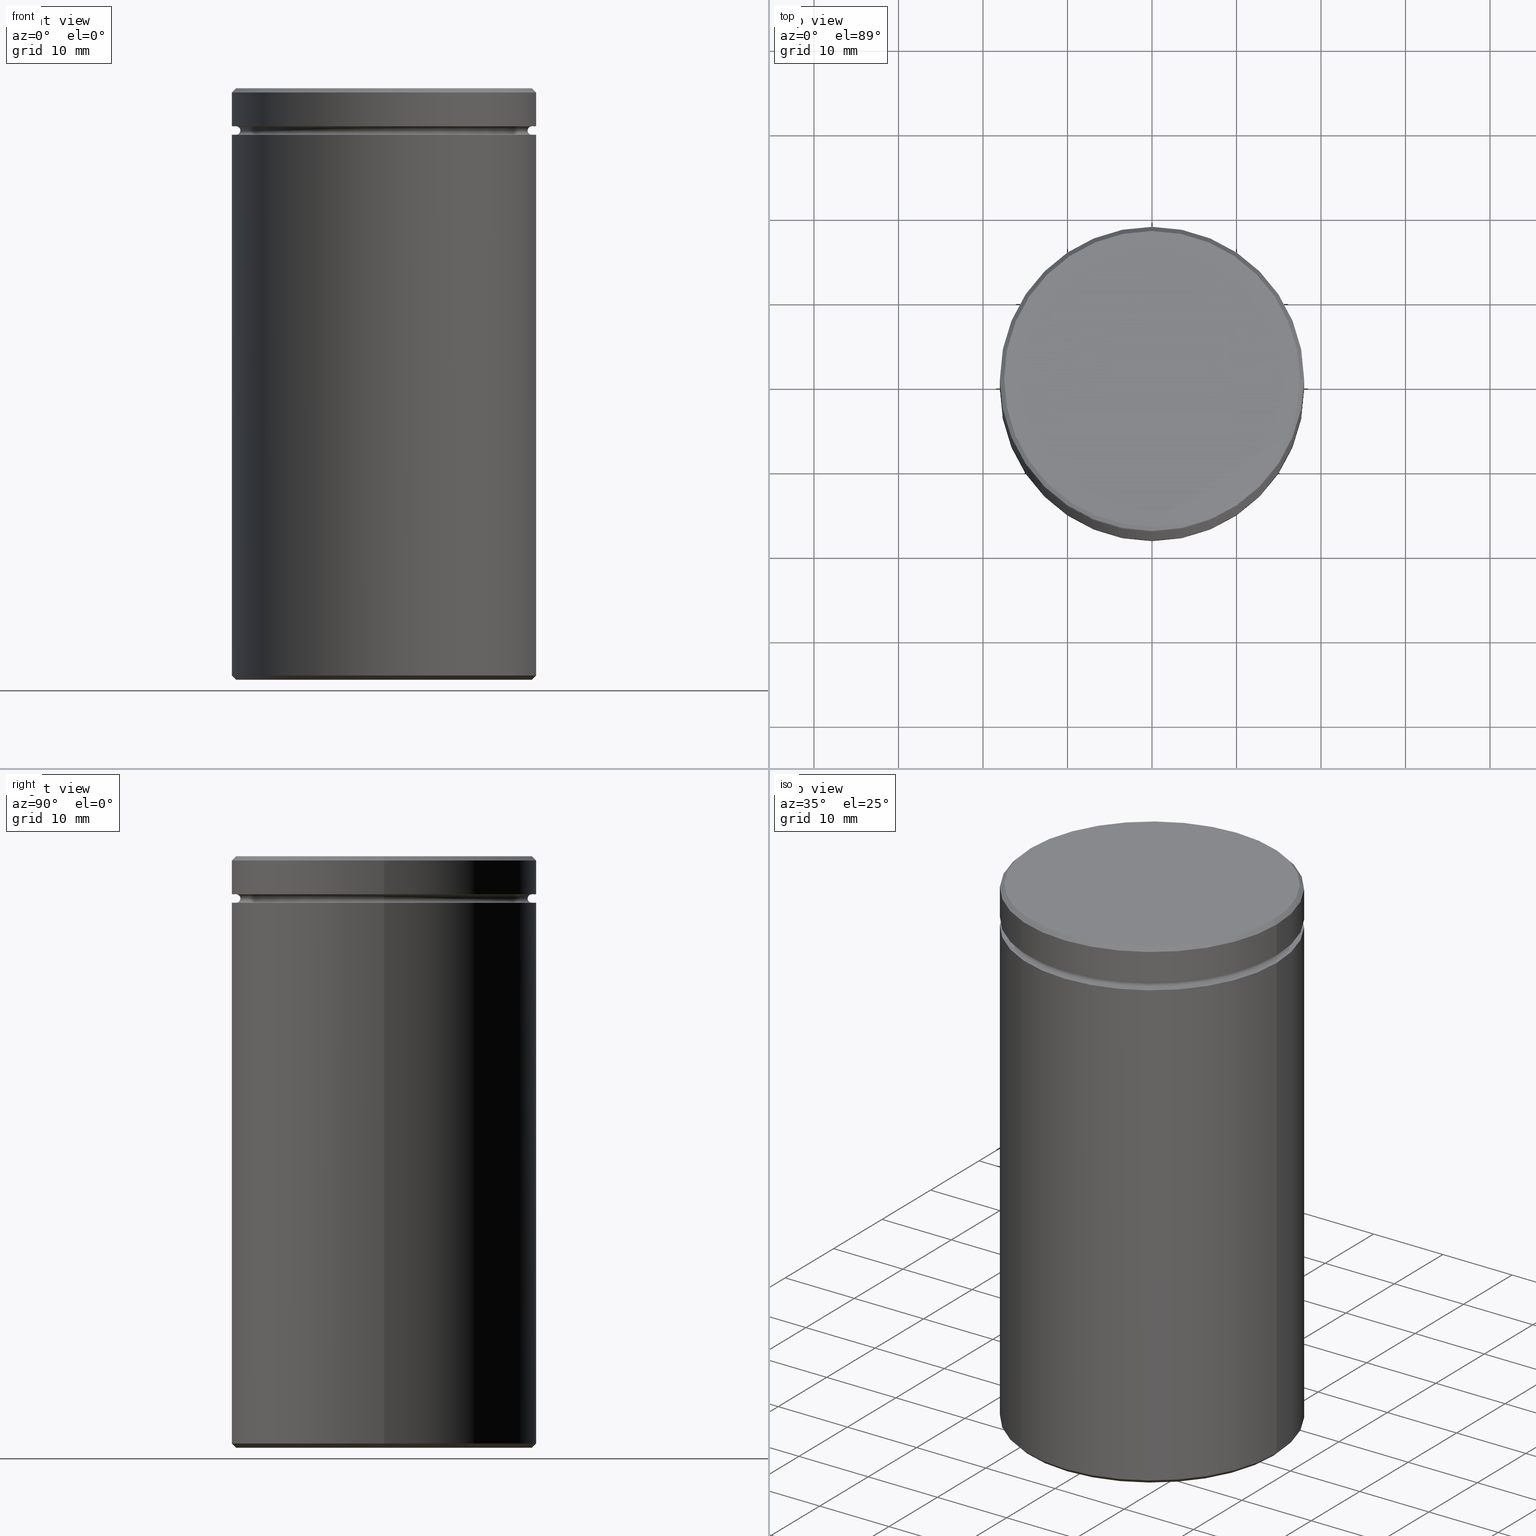
[diagram: canonical four-view strip — front | top / right | iso, engineering-drawing reading convention]
A machine part, canonical four-view strip (front | top / right | iso — engineering-drawing reading convention). The complete STEP part file that produces these views, byte-faithful:
ISO-10303-21;
HEADER;
FILE_DESCRIPTION (( 'STEP AP203' ),
    '1' );
FILE_NAME ('dcb7.STEP',
    '2024-01-02T17:56:58',
    ( '' ),
    ( '' ),
    'SwSTEP 2.0',
    'SolidWorks 2019',
    '' );
FILE_SCHEMA (( 'CONFIG_CONTROL_DESIGN' ));
ENDSEC;

DATA;
#1 = EDGE_LOOP ( 'NONE', ( #355, #127, #502, #558 ) ) ;
#2 = CC_DESIGN_PERSON_AND_ORGANIZATION_ASSIGNMENT ( #526, #442, ( #46 ) ) ;
#3 = DIRECTION ( 'NONE',  ( -0.7071067811865425767, 0.000000000000000000, -0.7071067811865525687 ) ) ;
#4 = CARTESIAN_POINT ( 'NONE',  ( 17.49999999999999645, 2.143131898507867854E-15, -5.000000000000000888 ) ) ;
#5 = DIRECTION ( 'NONE',  ( 1.000000000000000000, 0.000000000000000000, 0.000000000000000000 ) ) ;
#6 = LINE ( 'NONE', #418, #44 ) ;
#7 = DIRECTION ( 'NONE',  ( 0.000000000000000000, 0.000000000000000000, -1.000000000000000000 ) ) ;
#8 = DIRECTION ( 'NONE',  ( -1.000000000000000000, 0.000000000000000000, -0.000000000000000000 ) ) ;
#9 = ADVANCED_FACE ( 'NONE', ( #421 ), #186, .T. ) ;
#10 = ORIENTED_EDGE ( 'NONE', *, *, #205, .T. ) ;
#11 = LINE ( 'NONE', #157, #323 ) ;
#12 = CIRCLE ( 'NONE', #350, 12.50000000000000000 ) ;
#13 = ORIENTED_EDGE ( 'NONE', *, *, #81, .T. ) ;
#14 = AXIS2_PLACEMENT_3D ( 'NONE', #499, #379, #108 ) ;
#15 = CYLINDRICAL_SURFACE ( 'NONE', #164, 18.00000000000000000 ) ;
#16 = DIRECTION ( 'NONE',  ( -1.000000000000000000, 0.000000000000000000, 0.000000000000000000 ) ) ;
#17 = ORIENTED_EDGE ( 'NONE', *, *, #20, .T. ) ;
#18 = ORIENTED_EDGE ( 'NONE', *, *, #112, .T. ) ;
#19 = FACE_OUTER_BOUND ( 'NONE', #423, .T. ) ;
#20 = EDGE_CURVE ( 'NONE', #378, #233, #408, .T. ) ;
#21 = DIRECTION ( 'NONE',  ( 0.000000000000000000, 0.000000000000000000, -1.000000000000000000 ) ) ;
#22 = ORIENTED_EDGE ( 'NONE', *, *, #480, .F. ) ;
#23 = CIRCLE ( 'NONE', #562, 18.00000000000000000 ) ;
#24 = CIRCLE ( 'NONE', #352, 0.5000000000000004441 ) ;
#25 = ORIENTED_EDGE ( 'NONE', *, *, #440, .T. ) ;
#26 = EDGE_CURVE ( 'NONE', #114, #208, #284, .T. ) ;
#27 = FACE_OUTER_BOUND ( 'NONE', #385, .T. ) ;
#28 = EDGE_LOOP ( 'NONE', ( #13, #560 ) ) ;
#29 = ORIENTED_EDGE ( 'NONE', *, *, #261, .F. ) ;
#30 = AXIS2_PLACEMENT_3D ( 'NONE', #409, #420, #153 ) ;
#31 = DATE_TIME_ROLE ( 'creation_date' ) ;
#32 = EDGE_CURVE ( 'NONE', #486, #551, #232, .T. ) ;
#33 = ORIENTED_EDGE ( 'NONE', *, *, #93, .F. ) ;
#34 = CC_DESIGN_PERSON_AND_ORGANIZATION_ASSIGNMENT ( #517, #216, ( #46 ) ) ;
#35 = DIRECTION ( 'NONE',  ( 0.7071067811865549002, 0.000000000000000000, 0.7071067811865401342 ) ) ;
#36 = PERSON_AND_ORGANIZATION ( #264, #458 ) ;
#37 = CARTESIAN_POINT ( 'NONE',  ( 0.000000000000000000, 0.000000000000000000, 0.000000000000000000 ) ) ;
#38 = CIRCLE ( 'NONE', #94, 18.00000000000000000 ) ;
#39 = PERSON_AND_ORGANIZATION ( #264, #458 ) ;
#40 = ORIENTED_EDGE ( 'NONE', *, *, #107, .F. ) ;
#41 =( NAMED_UNIT ( * ) PLANE_ANGLE_UNIT ( ) SI_UNIT ( $, .RADIAN. ) );
#42 = ORIENTED_EDGE ( 'NONE', *, *, #274, .F. ) ;
#43 = DIRECTION ( 'NONE',  ( -0.000000000000000000, -0.000000000000000000, 1.000000000000000000 ) ) ;
#44 = VECTOR ( 'NONE', #362, 1000.000000000000000 ) ;
#45 = FACE_OUTER_BOUND ( 'NONE', #1, .T. ) ;
#46 = PRODUCT_DEFINITION_FORMATION_WITH_SPECIFIED_SOURCE ( 'LIBOVOLN�', '', #426, .NOT_KNOWN. ) ;
#47 = DIRECTION ( 'NONE',  ( 1.224646799147353207E-16, 1.000000000000000000, 0.000000000000000000 ) ) ;
#48 = DIRECTION ( 'NONE',  ( -0.000000000000000000, -0.000000000000000000, 1.000000000000000000 ) ) ;
#49 = CARTESIAN_POINT ( 'NONE',  ( 0.000000000000000000, 0.000000000000000000, -69.50000000000001421 ) ) ;
#50 = ADVANCED_FACE ( 'NONE', ( #111 ), #341, .F. ) ;
#51 = DIRECTION ( 'NONE',  ( -0.000000000000000000, -0.000000000000000000, 1.000000000000000000 ) ) ;
#52 = CARTESIAN_POINT ( 'NONE',  ( 0.000000000000000000, 0.000000000000000000, -4.500000000000000888 ) ) ;
#53 = DIRECTION ( 'NONE',  ( 1.000000000000000000, 0.000000000000000000, 0.000000000000000000 ) ) ;
#54 = DIRECTION ( 'NONE',  ( -1.000000000000000000, 1.224646799147349509E-16, 0.000000000000000000 ) ) ;
#55 = AXIS2_PLACEMENT_3D ( 'NONE', #49, #498, #99 ) ;
#56 = ORIENTED_EDGE ( 'NONE', *, *, #353, .T. ) ;
#57 = CARTESIAN_POINT ( 'NONE',  ( 0.000000000000000000, 0.000000000000000000, -69.50000000000001421 ) ) ;
#58 = ADVANCED_FACE ( 'NONE', ( #19 ), #332, .F. ) ;
#59 = DIRECTION ( 'NONE',  ( -0.000000000000000000, -0.000000000000000000, 1.000000000000000000 ) ) ;
#60 = FACE_OUTER_BOUND ( 'NONE', #513, .T. ) ;
#61 = CARTESIAN_POINT ( 'NONE',  ( 0.000000000000000000, 0.000000000000000000, -0.5000000000000177636 ) ) ;
#62 = DIRECTION ( 'NONE',  ( -1.000000000000000000, 0.000000000000000000, 0.000000000000000000 ) ) ;
#63 = ORIENTED_EDGE ( 'NONE', *, *, #261, .T. ) ;
#64 = DIRECTION ( 'NONE',  ( -1.000000000000000000, 0.000000000000000000, 0.000000000000000000 ) ) ;
#65 = LINE ( 'NONE', #259, #238 ) ;
#66 = EDGE_LOOP ( 'NONE', ( #29, #359, #381, #565 ) ) ;
#67 = CARTESIAN_POINT ( 'NONE',  ( -17.49999999999998934, 0.000000000000000000, 0.000000000000000000 ) ) ;
#68 = AXIS2_PLACEMENT_3D ( 'NONE', #37, #223, #135 ) ;
#69 = APPROVAL_STATUS ( 'not_yet_approved' ) ;
#70 = ADVANCED_FACE ( 'NONE', ( #60, #295 ), #568, .T. ) ;
#71 = CARTESIAN_POINT ( 'NONE',  ( 12.50000000000000000, 1.530808498934191521E-15, -24.00000000000000711 ) ) ;
#72 = AXIS2_PLACEMENT_3D ( 'NONE', #501, #257, #431 ) ;
#73 = ADVANCED_FACE ( 'NONE', ( #225, #402 ), #137, .T. ) ;
#74 = ORIENTED_EDGE ( 'NONE', *, *, #566, .F. ) ;
#75 = COORDINATED_UNIVERSAL_TIME_OFFSET ( 1, 0, .AHEAD. ) ;
#76 = DIRECTION ( 'NONE',  ( -0.000000000000000000, -0.000000000000000000, 1.000000000000000000 ) ) ;
#77 = EDGE_CURVE ( 'NONE', #278, #130, #496, .T. ) ;
#78 = DATE_AND_TIME ( #356, #203 ) ;
#79 = CARTESIAN_POINT ( 'NONE',  ( 18.00000000000000000, 0.000000000000000000, 0.000000000000000000 ) ) ;
#80 = FACE_OUTER_BOUND ( 'NONE', #380, .T. ) ;
#81 = EDGE_CURVE ( 'NONE', #161, #326, #398, .T. ) ;
#82 = DIRECTION ( 'NONE',  ( 0.000000000000000000, 0.000000000000000000, 1.000000000000000000 ) ) ;
#83 = CONICAL_SURFACE ( 'NONE', #55, 18.00000000000000000, 0.7853981633974587151 ) ;
#84 = DIRECTION ( 'NONE',  ( 0.000000000000000000, 0.000000000000000000, -1.000000000000000000 ) ) ;
#85 = AXIS2_PLACEMENT_3D ( 'NONE', #516, #377, #549 ) ;
#86 = ORIENTED_EDGE ( 'NONE', *, *, #205, .F. ) ;
#87 = DATE_AND_TIME ( #128, #194 ) ;
#88 = ORIENTED_EDGE ( 'NONE', *, *, #151, .T. ) ;
#89 = CARTESIAN_POINT ( 'NONE',  ( 0.000000000000000000, 0.000000000000000000, -4.999999999999999112 ) ) ;
#90 = VECTOR ( 'NONE', #3, 999.9999999999998863 ) ;
#91 = CARTESIAN_POINT ( 'NONE',  ( 0.000000000000000000, 0.000000000000000000, -4.500000000000000888 ) ) ;
#92 = LOCAL_TIME ( 18, 56, 58.00000000000000000, #477 ) ;
#93 = EDGE_CURVE ( 'NONE', #541, #326, #24, .T. ) ;
#94 = AXIS2_PLACEMENT_3D ( 'NONE', #61, #427, #559 ) ;
#95 = VECTOR ( 'NONE', #35, 1000.000000000000000 ) ;
#96 = CARTESIAN_POINT ( 'NONE',  ( -17.49999999999999645, 2.143131898507867854E-15, -5.500000000000000000 ) ) ;
#97 = DIRECTION ( 'NONE',  ( -1.000000000000000000, 0.000000000000000000, -0.000000000000000000 ) ) ;
#98 = CYLINDRICAL_SURFACE ( 'NONE', #415, 12.50000000000000000 ) ;
#99 = DIRECTION ( 'NONE',  ( 1.000000000000000000, 0.000000000000000000, 0.000000000000000000 ) ) ;
#100 = DIRECTION ( 'NONE',  ( 0.000000000000000000, -0.000000000000000000, 1.000000000000000000 ) ) ;
#101 = ORIENTED_EDGE ( 'NONE', *, *, #248, .F. ) ;
#102 = CONICAL_SURFACE ( 'NONE', #68, 17.49999999999998934, 0.7853981633974412846 ) ;
#103 = DIRECTION ( 'NONE',  ( 0.000000000000000000, 0.000000000000000000, -1.000000000000000000 ) ) ;
#104 = CARTESIAN_POINT ( 'NONE',  ( 0.000000000000000000, 0.000000000000000000, 0.000000000000000000 ) ) ;
#105 = ORIENTED_EDGE ( 'NONE', *, *, #274, .T. ) ;
#106 = DIRECTION ( 'NONE',  ( 0.7071067811865425767, 8.659560562354873694E-17, -0.7071067811865525687 ) ) ;
#107 = EDGE_CURVE ( 'NONE', #541, #191, #556, .T. ) ;
#108 = DIRECTION ( 'NONE',  ( -1.000000000000000000, 0.000000000000000000, 0.000000000000000000 ) ) ;
#109 = VERTEX_POINT ( 'NONE', #286 ) ;
#110 = CARTESIAN_POINT ( 'NONE',  ( 0.000000000000000000, 0.000000000000000000, -5.000000000000000888 ) ) ;
#111 = FACE_OUTER_BOUND ( 'NONE', #335, .T. ) ;
#112 = EDGE_CURVE ( 'NONE', #551, #384, #11, .T. ) ;
#113 = CC_DESIGN_DATE_AND_TIME_ASSIGNMENT ( #132, #224, ( #521 ) ) ;
#114 = VERTEX_POINT ( 'NONE', #293 ) ;
#115 = CARTESIAN_POINT ( 'NONE',  ( -18.00000000000000000, 2.204364238465235428E-15, -0.5000000000000177636 ) ) ;
#116 = ORIENTED_EDGE ( 'NONE', *, *, #77, .T. ) ;
#117 = ADVANCED_FACE ( 'NONE', ( #247 ), #537, .T. ) ;
#118 = DIRECTION ( 'NONE',  ( -1.000000000000000000, 0.000000000000000000, 0.000000000000000000 ) ) ;
#119 = CARTESIAN_POINT ( 'NONE',  ( 18.00000000000000000, 0.000000000000000000, -69.50000000000001421 ) ) ;
#120 = AXIS2_PLACEMENT_3D ( 'NONE', #535, #497, #97 ) ;
#121 = APPLICATION_PROTOCOL_DEFINITION ( 'international standard', 'config_control_design', 1994, #152 ) ;
#122 = CYLINDRICAL_SURFACE ( 'NONE', #211, 18.00000000000000000 ) ;
#123 = VERTEX_POINT ( 'NONE', #371 ) ;
#124 = PERSON_AND_ORGANIZATION_ROLE ( 'creator' ) ;
#125 = DIRECTION ( 'NONE',  ( -0.000000000000000000, -0.000000000000000000, -1.000000000000000000 ) ) ;
#126 = EDGE_CURVE ( 'NONE', #199, #384, #38, .T. ) ;
#127 = ORIENTED_EDGE ( 'NONE', *, *, #512, .T. ) ;
#128 = CALENDAR_DATE ( 2024, 2, 1 ) ;
#129 = CARTESIAN_POINT ( 'NONE',  ( 0.000000000000000000, 0.000000000000000000, -24.00000000000000711 ) ) ;
#130 = VERTEX_POINT ( 'NONE', #437 ) ;
#131 = AXIS2_PLACEMENT_3D ( 'NONE', #507, #7, #534 ) ;
#132 = DATE_AND_TIME ( #311, #92 ) ;
#133 = CIRCLE ( 'NONE', #406, 0.5000000000000004441 ) ;
#134 = VERTEX_POINT ( 'NONE', #557 ) ;
#135 = DIRECTION ( 'NONE',  ( -1.000000000000000000, 0.000000000000000000, 0.000000000000000000 ) ) ;
#136 = AXIS2_PLACEMENT_3D ( 'NONE', #148, #100, #53 ) ;
#137 = PLANE ( 'NONE',  #243 ) ;
#138 = CARTESIAN_POINT ( 'NONE',  ( 0.000000000000000000, 0.000000000000000000, -0.5000000000000177636 ) ) ;
#139 = PLANE ( 'NONE',  #266 ) ;
#140 = CARTESIAN_POINT ( 'NONE',  ( -17.49999999999999645, 0.000000000000000000, -4.500000000000000888 ) ) ;
#141 = LINE ( 'NONE', #327, #320 ) ;
#142 = CARTESIAN_POINT ( 'NONE',  ( 17.50000000000000000, 0.000000000000000000, -70.00000000000000000 ) ) ;
#143 = EDGE_CURVE ( 'NONE', #208, #114, #511, .T. ) ;
#144 = CARTESIAN_POINT ( 'NONE',  ( 18.00000000000000000, 0.000000000000000000, -0.5000000000000177636 ) ) ;
#145 = CIRCLE ( 'NONE', #365, 12.50000000000000000 ) ;
#146 = DIRECTION ( 'NONE',  ( 1.000000000000000000, 0.000000000000000000, 0.000000000000000000 ) ) ;
#147 = CYLINDRICAL_SURFACE ( 'NONE', #478, 18.00000000000000000 ) ;
#148 = CARTESIAN_POINT ( 'NONE',  ( 0.000000000000000000, 0.000000000000000000, 0.000000000000000000 ) ) ;
#149 = UNCERTAINTY_MEASURE_WITH_UNIT (LENGTH_MEASURE( 1.000000000000000082E-05 ), #173, 'distance_accuracy_value', 'NONE');
#150 = CARTESIAN_POINT ( 'NONE',  ( 0.000000000000000000, 0.000000000000000000, -4.500000000000000888 ) ) ;
#151 = EDGE_CURVE ( 'NONE', #551, #486, #342, .T. ) ;
#152 = APPLICATION_CONTEXT ( 'configuration controlled 3d designs of mechanical parts and assemblies' ) ;
#153 = DIRECTION ( 'NONE',  ( -1.000000000000000000, 0.000000000000000000, 0.000000000000000000 ) ) ;
#154 = AXIS2_PLACEMENT_3D ( 'NONE', #360, #411, #456 ) ;
#155 = CC_DESIGN_APPROVAL ( #383, ( #46 ) ) ;
#156 = ORIENTED_EDGE ( 'NONE', *, *, #20, .F. ) ;
#157 = CARTESIAN_POINT ( 'NONE',  ( 17.49999999999998934, 2.143131898507866276E-15, 0.000000000000000000 ) ) ;
#158 = ADVANCED_FACE ( 'NONE', ( #27 ), #388, .F. ) ;
#159 = CARTESIAN_POINT ( 'NONE',  ( 0.000000000000000000, 0.000000000000000000, 0.000000000000000000 ) ) ;
#160 = EDGE_LOOP ( 'NONE', ( #417, #25, #550, #401 ) ) ;
#161 = VERTEX_POINT ( 'NONE', #166 ) ;
#162 = LINE ( 'NONE', #119, #95 ) ;
#163 = CARTESIAN_POINT ( 'NONE',  ( -16.99999999999999645, 2.112515728529184067E-15, -4.999999999999999112 ) ) ;
#164 = AXIS2_PLACEMENT_3D ( 'NONE', #369, #540, #531 ) ;
#165 = VERTEX_POINT ( 'NONE', #518 ) ;
#166 = CARTESIAN_POINT ( 'NONE',  ( 17.49999999999999645, 0.000000000000000000, -5.500000000000000000 ) ) ;
#167 = AXIS2_PLACEMENT_3D ( 'NONE', #180, #524, #254 ) ;
#168 = EDGE_LOOP ( 'NONE', ( #101, #436, #338, #246 ) ) ;
#169 = EDGE_CURVE ( 'NONE', #208, #123, #162, .T. ) ;
#170 = DIRECTION ( 'NONE',  ( -0.000000000000000000, -0.000000000000000000, -1.000000000000000000 ) ) ;
#171 = ORIENTED_EDGE ( 'NONE', *, *, #484, .T. ) ;
#172 = DIRECTION ( 'NONE',  ( -0.000000000000000000, -0.000000000000000000, -1.000000000000000000 ) ) ;
#173 =( LENGTH_UNIT ( ) NAMED_UNIT ( * ) SI_UNIT ( .MILLI., .METRE. ) );
#174 = VECTOR ( 'NONE', #170, 1000.000000000000000 ) ;
#175 = VECTOR ( 'NONE', #59, 1000.000000000000000 ) ;
#176 = APPROVAL_ROLE ( '' ) ;
#177 = CARTESIAN_POINT ( 'NONE',  ( 16.99999999999999645, 0.000000000000000000, -4.999999999999999112 ) ) ;
#178 = LINE ( 'NONE', #71, #373 ) ;
#179 = APPROVAL_STATUS ( 'not_yet_approved' ) ;
#180 = CARTESIAN_POINT ( 'NONE',  ( 0.000000000000000000, 0.000000000000000000, -4.999999999999999112 ) ) ;
#181 = APPLICATION_PROTOCOL_DEFINITION ( 'international standard', 'config_control_design', 1994, #245 ) ;
#182 = EDGE_LOOP ( 'NONE', ( #213, #460, #74, #399 ) ) ;
#183 = AXIS2_PLACEMENT_3D ( 'NONE', #91, #241, #230 ) ;
#184 = CC_DESIGN_APPROVAL ( #479, ( #348 ) ) ;
#185 = CYLINDRICAL_SURFACE ( 'NONE', #154, 18.00000000000000000 ) ;
#186 = CONICAL_SURFACE ( 'NONE', #72, 18.00000000000000000, 0.7853981633974587151 ) ;
#187 = ADVANCED_FACE ( 'NONE', ( #309 ), #122, .T. ) ;
#188 = DIRECTION ( 'NONE',  ( -1.000000000000000000, 0.000000000000000000, 0.000000000000000000 ) ) ;
#189 = CARTESIAN_POINT ( 'NONE',  ( 0.000000000000000000, 0.000000000000000000, -5.500000000000000000 ) ) ;
#190 = DIRECTION ( 'NONE',  ( -0.000000000000000000, -0.000000000000000000, 1.000000000000000000 ) ) ;
#191 = VERTEX_POINT ( 'NONE', #177 ) ;
#192 = CONICAL_SURFACE ( 'NONE', #202, 17.49999999999998934, 0.7853981633974412846 ) ;
#193 = ADVANCED_FACE ( 'NONE', ( #510 ), #192, .T. ) ;
#194 = LOCAL_TIME ( 18, 56, 58.00000000000000000, #75 ) ;
#195 = AXIS2_PLACEMENT_3D ( 'NONE', #150, #538, #62 ) ;
#196 = DIRECTION ( 'NONE',  ( -0.000000000000000000, -0.000000000000000000, 1.000000000000000000 ) ) ;
#197 = ORIENTED_EDGE ( 'NONE', *, *, #433, .F. ) ;
#198 = FACE_OUTER_BOUND ( 'NONE', #361, .T. ) ;
#199 = VERTEX_POINT ( 'NONE', #115 ) ;
#200 = DIRECTION ( 'NONE',  ( -1.000000000000000000, 0.000000000000000000, 0.000000000000000000 ) ) ;
#201 = ORIENTED_EDGE ( 'NONE', *, *, #296, .F. ) ;
#202 = AXIS2_PLACEMENT_3D ( 'NONE', #468, #434, #301 ) ;
#203 = LOCAL_TIME ( 18, 56, 58.00000000000000000, #346 ) ;
#204 = ORIENTED_EDGE ( 'NONE', *, *, #221, .F. ) ;
#205 = EDGE_CURVE ( 'NONE', #486, #199, #472, .T. ) ;
#206 = ORIENTED_EDGE ( 'NONE', *, *, #151, .F. ) ;
#207 = ORIENTED_EDGE ( 'NONE', *, *, #32, .F. ) ;
#208 = VERTEX_POINT ( 'NONE', #142 ) ;
#209 = ORIENTED_EDGE ( 'NONE', *, *, #26, .F. ) ;
#210 = CARTESIAN_POINT ( 'NONE',  ( -12.50000000000000000, 0.000000000000000000, -24.00000000000000711 ) ) ;
#211 = AXIS2_PLACEMENT_3D ( 'NONE', #298, #76, #312 ) ;
#212 = AXIS2_PLACEMENT_3D ( 'NONE', #89, #229, #330 ) ;
#213 = ORIENTED_EDGE ( 'NONE', *, *, #536, .T. ) ;
#214 = LINE ( 'NONE', #269, #174 ) ;
#215 = ORIENTED_EDGE ( 'NONE', *, *, #296, .T. ) ;
#216 = PERSON_AND_ORGANIZATION_ROLE ( 'design_supplier' ) ;
#217 = ORIENTED_EDGE ( 'NONE', *, *, #93, .T. ) ;
#218 = COORDINATED_UNIVERSAL_TIME_OFFSET ( 1, 0, .AHEAD. ) ;
#219 = CC_DESIGN_SECURITY_CLASSIFICATION ( #521, ( #46 ) ) ;
#220 = PERSON_AND_ORGANIZATION ( #264, #458 ) ;
#221 = EDGE_CURVE ( 'NONE', #326, #161, #429, .T. ) ;
#222 = CARTESIAN_POINT ( 'NONE',  ( 0.000000000000000000, 18.00000000000000000, -70.00000000000000000 ) ) ;
#223 = DIRECTION ( 'NONE',  ( 0.000000000000000000, 0.000000000000000000, -1.000000000000000000 ) ) ;
#224 = DATE_TIME_ROLE ( 'classification_date' ) ;
#225 = FACE_BOUND ( 'NONE', #303, .T. ) ;
#226 = ADVANCED_FACE ( 'NONE', ( #328 ), #98, .F. ) ;
#227 = ORIENTED_EDGE ( 'NONE', *, *, #32, .T. ) ;
#228 = EDGE_CURVE ( 'NONE', #392, #297, #214, .T. ) ;
#229 = DIRECTION ( 'NONE',  ( -0.000000000000000000, -0.000000000000000000, 1.000000000000000000 ) ) ;
#230 = DIRECTION ( 'NONE',  ( 1.000000000000000000, 0.000000000000000000, 0.000000000000000000 ) ) ;
#231 = CARTESIAN_POINT ( 'NONE',  ( 0.000000000000000000, 16.99999999999999645, -5.500000000000000000 ) ) ;
#232 = CIRCLE ( 'NONE', #545, 17.49999999999998934 ) ;
#233 = VERTEX_POINT ( 'NONE', #302 ) ;
#234 = DIRECTION ( 'NONE',  ( -1.224646799147353207E-16, 1.000000000000000000, 0.000000000000000000 ) ) ;
#235 = DIRECTION ( 'NONE',  ( 1.000000000000000000, 0.000000000000000000, 0.000000000000000000 ) ) ;
#236 = DIRECTION ( 'NONE',  ( 1.000000000000000000, 0.000000000000000000, 0.000000000000000000 ) ) ;
#237 = CARTESIAN_POINT ( 'NONE',  ( 0.000000000000000000, 0.000000000000000000, -24.00000000000000711 ) ) ;
#238 = VECTOR ( 'NONE', #382, 1000.000000000000000 ) ;
#239 = ORIENTED_EDGE ( 'NONE', *, *, #107, .T. ) ;
#240 = AXIS2_PLACEMENT_3D ( 'NONE', #453, #279, #494 ) ;
#241 = DIRECTION ( 'NONE',  ( -0.000000000000000000, -0.000000000000000000, 1.000000000000000000 ) ) ;
#242 = CC_DESIGN_DATE_AND_TIME_ASSIGNMENT ( #78, #31, ( #348 ) ) ;
#243 = AXIS2_PLACEMENT_3D ( 'NONE', #324, #413, #8 ) ;
#244 = AXIS2_PLACEMENT_3D ( 'NONE', #552, #262, #394 ) ;
#245 = APPLICATION_CONTEXT ( 'configuration controlled 3d designs of mechanical parts and assemblies' ) ;
#246 = ORIENTED_EDGE ( 'NONE', *, *, #419, .T. ) ;
#247 = FACE_OUTER_BOUND ( 'NONE', #471, .T. ) ;
#248 = EDGE_CURVE ( 'NONE', #165, #109, #178, .T. ) ;
#249 = FACE_OUTER_BOUND ( 'NONE', #182, .T. ) ;
#250 = EDGE_LOOP ( 'NONE', ( #33, #42, #318, #204 ) ) ;
#251 = PLANE ( 'NONE',  #120 ) ;
#252 =( NAMED_UNIT ( * ) SI_UNIT ( $, .STERADIAN. ) SOLID_ANGLE_UNIT ( ) );
#253 = FACE_OUTER_BOUND ( 'NONE', #250, .T. ) ;
#254 = DIRECTION ( 'NONE',  ( 1.000000000000000000, 0.000000000000000000, 0.000000000000000000 ) ) ;
#255 = CIRCLE ( 'NONE', #240, 16.99999999999999645 ) ;
#256 = CIRCLE ( 'NONE', #467, 12.50000000000000000 ) ;
#257 = DIRECTION ( 'NONE',  ( -0.000000000000000000, -0.000000000000000000, 1.000000000000000000 ) ) ;
#258 = FACE_OUTER_BOUND ( 'NONE', #267, .T. ) ;
#259 = CARTESIAN_POINT ( 'NONE',  ( -18.00000000000000000, 2.204364238465235428E-15, -69.50000000000001421 ) ) ;
#260 = ORIENTED_EDGE ( 'NONE', *, *, #566, .T. ) ;
#261 = EDGE_CURVE ( 'NONE', #114, #281, #65, .T. ) ;
#262 = DIRECTION ( 'NONE',  ( -0.000000000000000000, -0.000000000000000000, 1.000000000000000000 ) ) ;
#263 = CYLINDRICAL_SURFACE ( 'NONE', #543, 12.50000000000000000 ) ;
#264 = PERSON ( 'NEUR�EN�', 'NEUR�EN�', 'NEUR�EN�', ('NEUR�EN�'), ('NEUR�EN�'), ('NEUR�EN�') ) ;
#265 = CARTESIAN_POINT ( 'NONE',  ( 0.000000000000000000, 0.000000000000000000, -4.999999999999999112 ) ) ;
#266 = AXIS2_PLACEMENT_3D ( 'NONE', #231, #412, #5 ) ;
#267 = EDGE_LOOP ( 'NONE', ( #260, #116 ) ) ;
#268 = APPROVAL_DATE_TIME ( #87, #444 ) ;
#269 = CARTESIAN_POINT ( 'NONE',  ( -12.50000000000000000, 0.000000000000000000, -24.00000000000000711 ) ) ;
#270 = ADVANCED_FACE ( 'NONE', ( #403 ), #83, .T. ) ;
#271 = CALENDAR_DATE ( 2024, 2, 1 ) ;
#272 = ORIENTED_EDGE ( 'NONE', *, *, #248, .T. ) ;
#273 = COORDINATED_UNIVERSAL_TIME_OFFSET ( 1, 0, .AHEAD. ) ;
#274 = EDGE_CURVE ( 'NONE', #191, #541, #255, .T. ) ;
#275 = DIRECTION ( 'NONE',  ( -1.000000000000000000, 0.000000000000000000, -0.000000000000000000 ) ) ;
#276 = SHAPE_DEFINITION_REPRESENTATION ( #283, #532 ) ;
#277 = EDGE_CURVE ( 'NONE', #505, #134, #561, .T. ) ;
#278 = VERTEX_POINT ( 'NONE', #282 ) ;
#279 = DIRECTION ( 'NONE',  ( -0.000000000000000000, -0.000000000000000000, 1.000000000000000000 ) ) ;
#280 = ORIENTED_EDGE ( 'NONE', *, *, #126, .T. ) ;
#281 = VERTEX_POINT ( 'NONE', #414 ) ;
#282 = CARTESIAN_POINT ( 'NONE',  ( -18.00000000000000000, 2.204364238465235428E-15, -5.500000000000000000 ) ) ;
#283 = PRODUCT_DEFINITION_SHAPE ( 'NONE', 'NONE',  #348 ) ;
#284 = CIRCLE ( 'NONE', #14, 17.50000000000000000 ) ;
#285 = DIRECTION ( 'NONE',  ( -1.000000000000000000, -1.224646799147349509E-16, 0.000000000000000000 ) ) ;
#286 = CARTESIAN_POINT ( 'NONE',  ( 12.50000000000000000, 1.530808498934191521E-15, -70.00000000000000000 ) ) ;
#287 = CC_DESIGN_PERSON_AND_ORGANIZATION_ASSIGNMENT ( #220, #395, ( #521 ) ) ;
#288 = DIRECTION ( 'NONE',  ( 0.000000000000000000, 0.000000000000000000, -1.000000000000000000 ) ) ;
#289 = EDGE_LOOP ( 'NONE', ( #390, #337 ) ) ;
#290 = DIRECTION ( 'NONE',  ( 0.000000000000000000, 0.000000000000000000, -1.000000000000000000 ) ) ;
#291 = DIRECTION ( 'NONE',  ( -0.000000000000000000, -0.000000000000000000, 1.000000000000000000 ) ) ;
#292 = CIRCLE ( 'NONE', #509, 18.00000000000000000 ) ;
#293 = CARTESIAN_POINT ( 'NONE',  ( -17.50000000000000000, 2.173748068486551641E-15, -70.00000000000000000 ) ) ;
#294 = CARTESIAN_POINT ( 'NONE',  ( 18.00000000000000000, 0.000000000000000000, -4.500000000000000888 ) ) ;
#295 = FACE_BOUND ( 'NONE', #289, .T. ) ;
#296 = EDGE_CURVE ( 'NONE', #191, #233, #357, .T. ) ;
#297 = VERTEX_POINT ( 'NONE', #567 ) ;
#298 = CARTESIAN_POINT ( 'NONE',  ( 0.000000000000000000, 0.000000000000000000, 0.000000000000000000 ) ) ;
#299 = ADVANCED_FACE ( 'NONE', ( #449 ), #185, .T. ) ;
#300 = EDGE_LOOP ( 'NONE', ( #206, #18, #387, #86 ) ) ;
#301 = DIRECTION ( 'NONE',  ( -1.000000000000000000, 0.000000000000000000, 0.000000000000000000 ) ) ;
#302 = CARTESIAN_POINT ( 'NONE',  ( 17.49999999999999645, 2.143131898507867854E-15, -4.500000000000000888 ) ) ;
#303 = EDGE_LOOP ( 'NONE', ( #17, #490 ) ) ;
#304 = LINE ( 'NONE', #79, #317 ) ;
#305 = ORIENTED_EDGE ( 'NONE', *, *, #364, .T. ) ;
#306 = PRODUCT_RELATED_PRODUCT_CATEGORY ( 'detail', '', ( #426 ) ) ;
#307 = DIRECTION ( 'NONE',  ( 0.000000000000000000, 0.000000000000000000, -1.000000000000000000 ) ) ;
#308 = APPROVAL_ROLE ( '' ) ;
#309 = FACE_OUTER_BOUND ( 'NONE', #160, .T. ) ;
#310 = APPROVAL_PERSON_ORGANIZATION ( #563, #479, #176 ) ;
#311 = CALENDAR_DATE ( 2024, 2, 1 ) ;
#312 = DIRECTION ( 'NONE',  ( 1.000000000000000000, 0.000000000000000000, 0.000000000000000000 ) ) ;
#313 = EDGE_CURVE ( 'NONE', #281, #278, #6, .T. ) ;
#314 = DIRECTION ( 'NONE',  ( 1.000000000000000000, 0.000000000000000000, 0.000000000000000000 ) ) ;
#315 = PERSON_AND_ORGANIZATION ( #264, #458 ) ;
#316 = DIRECTION ( 'NONE',  ( 0.000000000000000000, 0.000000000000000000, -1.000000000000000000 ) ) ;
#317 = VECTOR ( 'NONE', #43, 1000.000000000000000 ) ;
#318 = ORIENTED_EDGE ( 'NONE', *, *, #433, .T. ) ;
#319 = ADVANCED_FACE ( 'NONE', ( #45 ), #15, .T. ) ;
#320 = VECTOR ( 'NONE', #48, 1000.000000000000000 ) ;
#321 = PERSON_AND_ORGANIZATION ( #264, #458 ) ;
#322 = AXIS2_PLACEMENT_3D ( 'NONE', #363, #190, #146 ) ;
#323 = VECTOR ( 'NONE', #106, 999.9999999999998863 ) ;
#324 = CARTESIAN_POINT ( 'NONE',  ( 0.000000000000000000, 18.00000000000000000, -4.500000000000000888 ) ) ;
#325 = CC_DESIGN_PERSON_AND_ORGANIZATION_ASSIGNMENT ( #315, #124, ( #348 ) ) ;
#326 = VERTEX_POINT ( 'NONE', #96 ) ;
#327 = CARTESIAN_POINT ( 'NONE',  ( 18.00000000000000000, 0.000000000000000000, 0.000000000000000000 ) ) ;
#328 = FACE_OUTER_BOUND ( 'NONE', #168, .T. ) ;
#329 = APPROVAL_PERSON_ORGANIZATION ( #321, #444, #441 ) ;
#330 = DIRECTION ( 'NONE',  ( 1.000000000000000000, 0.000000000000000000, 0.000000000000000000 ) ) ;
#331 = EDGE_CURVE ( 'NONE', #233, #378, #553, .T. ) ;
#332 = TOROIDAL_SURFACE ( 'NONE', #422, 17.49999999999999645, 0.5000000000000000000 ) ;
#333 = DIRECTION ( 'NONE',  ( 0.000000000000000000, 0.000000000000000000, -1.000000000000000000 ) ) ;
#334 = DIRECTION ( 'NONE',  ( 0.000000000000000000, -1.000000000000000000, 0.000000000000000000 ) ) ;
#335 = EDGE_LOOP ( 'NONE', ( #239, #215, #156, #410 ) ) ;
#336 = LINE ( 'NONE', #500, #175 ) ;
#337 = ORIENTED_EDGE ( 'NONE', *, *, #353, .F. ) ;
#338 = ORIENTED_EDGE ( 'NONE', *, *, #228, .T. ) ;
#339 = DIRECTION ( 'NONE',  ( -0.000000000000000000, -0.000000000000000000, 1.000000000000000000 ) ) ;
#340 = CIRCLE ( 'NONE', #85, 18.00000000000000000 ) ;
#341 = TOROIDAL_SURFACE ( 'NONE', #351, 17.49999999999999645, 0.5000000000000000000 ) ;
#342 = CIRCLE ( 'NONE', #244, 17.49999999999998934 ) ;
#343 = ORIENTED_EDGE ( 'NONE', *, *, #470, .T. ) ;
#344 = SECURITY_CLASSIFICATION_LEVEL ( 'unclassified' ) ;
#345 = DIRECTION ( 'NONE',  ( -0.000000000000000000, -0.000000000000000000, 1.000000000000000000 ) ) ;
#346 = COORDINATED_UNIVERSAL_TIME_OFFSET ( 1, 0, .AHEAD. ) ;
#347 = EDGE_CURVE ( 'NONE', #384, #199, #542, .T. ) ;
#348 = PRODUCT_DEFINITION ( 'NEZN�M�', '', #46, #428 ) ;
#349 = CIRCLE ( 'NONE', #30, 12.50000000000000000 ) ;
#350 = AXIS2_PLACEMENT_3D ( 'NONE', #366, #290, #16 ) ;
#351 = AXIS2_PLACEMENT_3D ( 'NONE', #110, #103, #461 ) ;
#352 = AXIS2_PLACEMENT_3D ( 'NONE', #448, #47, #54 ) ;
#353 = EDGE_CURVE ( 'NONE', #109, #297, #349, .T. ) ;
#354 = CALENDAR_DATE ( 2024, 2, 1 ) ;
#355 = ORIENTED_EDGE ( 'NONE', *, *, #364, .F. ) ;
#356 = CALENDAR_DATE ( 2024, 2, 1 ) ;
#357 = CIRCLE ( 'NONE', #527, 0.5000000000000004441 ) ;
#358 = CIRCLE ( 'NONE', #396, 18.00000000000000000 ) ;
#359 = ORIENTED_EDGE ( 'NONE', *, *, #143, .F. ) ;
#360 = CARTESIAN_POINT ( 'NONE',  ( 0.000000000000000000, 0.000000000000000000, 0.000000000000000000 ) ) ;
#361 = EDGE_LOOP ( 'NONE', ( #491, #272, #56, #447 ) ) ;
#362 = DIRECTION ( 'NONE',  ( -0.000000000000000000, -0.000000000000000000, 1.000000000000000000 ) ) ;
#363 = CARTESIAN_POINT ( 'NONE',  ( 0.000000000000000000, 0.000000000000000000, -5.500000000000000000 ) ) ;
#364 = EDGE_CURVE ( 'NONE', #134, #199, #336, .T. ) ;
#365 = AXIS2_PLACEMENT_3D ( 'NONE', #425, #21, #200 ) ;
#366 = CARTESIAN_POINT ( 'NONE',  ( 0.000000000000000000, 0.000000000000000000, -24.00000000000000711 ) ) ;
#367 = ORIENTED_EDGE ( 'NONE', *, *, #169, .F. ) ;
#368 = ORIENTED_EDGE ( 'NONE', *, *, #26, .T. ) ;
#369 = CARTESIAN_POINT ( 'NONE',  ( 0.000000000000000000, 0.000000000000000000, 0.000000000000000000 ) ) ;
#370 = DIRECTION ( 'NONE',  ( 1.000000000000000000, 0.000000000000000000, 0.000000000000000000 ) ) ;
#371 = CARTESIAN_POINT ( 'NONE',  ( 18.00000000000000000, 0.000000000000000000, -69.50000000000001421 ) ) ;
#372 = DIRECTION ( 'NONE',  ( 1.000000000000000000, 0.000000000000000000, 0.000000000000000000 ) ) ;
#373 = VECTOR ( 'NONE', #172, 1000.000000000000000 ) ;
#374 = ORIENTED_EDGE ( 'NONE', *, *, #81, .F. ) ;
#375 = CIRCLE ( 'NONE', #386, 0.5000000000000004441 ) ;
#376 = DIRECTION ( 'NONE',  ( 0.000000000000000000, 0.000000000000000000, -1.000000000000000000 ) ) ;
#377 = DIRECTION ( 'NONE',  ( -0.000000000000000000, -0.000000000000000000, 1.000000000000000000 ) ) ;
#378 = VERTEX_POINT ( 'NONE', #140 ) ;
#379 = DIRECTION ( 'NONE',  ( 0.000000000000000000, 0.000000000000000000, -1.000000000000000000 ) ) ;
#380 = EDGE_LOOP ( 'NONE', ( #487, #207, #10, #445 ) ) ;
#381 = ORIENTED_EDGE ( 'NONE', *, *, #169, .T. ) ;
#382 = DIRECTION ( 'NONE',  ( -0.7071067811865549002, 8.659560562355022838E-17, 0.7071067811865401342 ) ) ;
#383 = APPROVAL ( #179, 'NEUR�EN�' ) ;
#384 = VERTEX_POINT ( 'NONE', #144 ) ;
#385 = EDGE_LOOP ( 'NONE', ( #40, #217, #374, #197 ) ) ;
#386 = AXIS2_PLACEMENT_3D ( 'NONE', #455, #334, #288 ) ;
#387 = ORIENTED_EDGE ( 'NONE', *, *, #126, .F. ) ;
#388 = TOROIDAL_SURFACE ( 'NONE', #548, 17.49999999999999645, 0.5000000000000000000 ) ;
#389 = CARTESIAN_POINT ( 'NONE',  ( 17.49999999999998934, 2.173748068486550852E-15, 0.000000000000000000 ) ) ;
#390 = ORIENTED_EDGE ( 'NONE', *, *, #419, .F. ) ;
#391 = ADVANCED_FACE ( 'NONE', ( #253 ), #495, .F. ) ;
#392 = VERTEX_POINT ( 'NONE', #210 ) ;
#393 = DATE_AND_TIME ( #354, #569 ) ;
#394 = DIRECTION ( 'NONE',  ( 1.000000000000000000, 0.000000000000000000, 0.000000000000000000 ) ) ;
#395 = PERSON_AND_ORGANIZATION_ROLE ( 'classification_officer' ) ;
#396 = AXIS2_PLACEMENT_3D ( 'NONE', #547, #452, #372 ) ;
#397 = CARTESIAN_POINT ( 'NONE',  ( 0.000000000000000000, 0.000000000000000000, 0.000000000000000000 ) ) ;
#398 = CIRCLE ( 'NONE', #459, 17.49999999999999645 ) ;
#399 = ORIENTED_EDGE ( 'NONE', *, *, #450, .F. ) ;
#400 = MECHANICAL_CONTEXT ( 'NONE', #152, 'mechanical' ) ;
#401 = ORIENTED_EDGE ( 'NONE', *, *, #77, .F. ) ;
#402 = FACE_OUTER_BOUND ( 'NONE', #506, .T. ) ;
#403 = FACE_OUTER_BOUND ( 'NONE', #66, .T. ) ;
#404 = AXIS2_PLACEMENT_3D ( 'NONE', #52, #446, #188 ) ;
#405 = ADVANCED_FACE ( 'NONE', ( #249 ), #147, .T. ) ;
#406 = AXIS2_PLACEMENT_3D ( 'NONE', #469, #515, #307 ) ;
#407 = ORIENTED_EDGE ( 'NONE', *, *, #536, .F. ) ;
#408 = CIRCLE ( 'NONE', #195, 17.49999999999999645 ) ;
#409 = CARTESIAN_POINT ( 'NONE',  ( 0.000000000000000000, 0.000000000000000000, -70.00000000000000000 ) ) ;
#410 = ORIENTED_EDGE ( 'NONE', *, *, #522, .F. ) ;
#411 = DIRECTION ( 'NONE',  ( -0.000000000000000000, -0.000000000000000000, 1.000000000000000000 ) ) ;
#412 = DIRECTION ( 'NONE',  ( 0.000000000000000000, -0.000000000000000000, 1.000000000000000000 ) ) ;
#413 = DIRECTION ( 'NONE',  ( 0.000000000000000000, 0.000000000000000000, -1.000000000000000000 ) ) ;
#414 = CARTESIAN_POINT ( 'NONE',  ( -18.00000000000000000, 2.204364238465235428E-15, -69.50000000000001421 ) ) ;
#415 = AXIS2_PLACEMENT_3D ( 'NONE', #237, #546, #462 ) ;
#416 = LOCAL_TIME ( 18, 56, 58.00000000000000000, #273 ) ;
#417 = ORIENTED_EDGE ( 'NONE', *, *, #313, .F. ) ;
#418 = CARTESIAN_POINT ( 'NONE',  ( -18.00000000000000000, 2.204364238465235428E-15, 0.000000000000000000 ) ) ;
#419 = EDGE_CURVE ( 'NONE', #297, #109, #145, .T. ) ;
#420 = DIRECTION ( 'NONE',  ( 0.000000000000000000, 0.000000000000000000, -1.000000000000000000 ) ) ;
#421 = FACE_OUTER_BOUND ( 'NONE', #463, .T. ) ;
#422 = AXIS2_PLACEMENT_3D ( 'NONE', #424, #376, #64 ) ;
#423 = EDGE_LOOP ( 'NONE', ( #201, #105, #475, #539 ) ) ;
#424 = CARTESIAN_POINT ( 'NONE',  ( 0.000000000000000000, 0.000000000000000000, -5.000000000000000888 ) ) ;
#425 = CARTESIAN_POINT ( 'NONE',  ( 0.000000000000000000, 0.000000000000000000, -70.00000000000000000 ) ) ;
#426 = PRODUCT ( 'dcb7', 'dcb7', '', ( #400 ) ) ;
#427 = DIRECTION ( 'NONE',  ( 0.000000000000000000, 0.000000000000000000, -1.000000000000000000 ) ) ;
#428 = DESIGN_CONTEXT ( 'detailed design', #245, 'design' ) ;
#429 = CIRCLE ( 'NONE', #131, 17.49999999999999645 ) ;
#430 = CC_DESIGN_APPROVAL ( #444, ( #521 ) ) ;
#431 = DIRECTION ( 'NONE',  ( 1.000000000000000000, 0.000000000000000000, 0.000000000000000000 ) ) ;
#432 = AXIS2_PLACEMENT_3D ( 'NONE', #222, #316, #275 ) ;
#433 = EDGE_CURVE ( 'NONE', #191, #161, #375, .T. ) ;
#434 = DIRECTION ( 'NONE',  ( 0.000000000000000000, 0.000000000000000000, -1.000000000000000000 ) ) ;
#435 = ORIENTED_EDGE ( 'NONE', *, *, #277, .F. ) ;
#436 = ORIENTED_EDGE ( 'NONE', *, *, #470, .F. ) ;
#437 = CARTESIAN_POINT ( 'NONE',  ( 18.00000000000000000, 0.000000000000000000, -5.500000000000000000 ) ) ;
#438 = DIRECTION ( 'NONE',  ( 0.000000000000000000, 0.000000000000000000, -1.000000000000000000 ) ) ;
#439 =( GEOMETRIC_REPRESENTATION_CONTEXT ( 3 ) GLOBAL_UNCERTAINTY_ASSIGNED_CONTEXT ( ( #149 ) ) GLOBAL_UNIT_ASSIGNED_CONTEXT ( ( #173, #41, #252 ) ) REPRESENTATION_CONTEXT ( 'NONE', 'WORKASPACE' ) );
#440 = EDGE_CURVE ( 'NONE', #281, #123, #23, .T. ) ;
#441 = APPROVAL_ROLE ( '' ) ;
#442 = PERSON_AND_ORGANIZATION_ROLE ( 'creator' ) ;
#443 = APPROVAL_DATE_TIME ( #523, #479 ) ;
#444 = APPROVAL ( #488, 'NEUR�EN�' ) ;
#445 = ORIENTED_EDGE ( 'NONE', *, *, #347, .F. ) ;
#446 = DIRECTION ( 'NONE',  ( -0.000000000000000000, -0.000000000000000000, 1.000000000000000000 ) ) ;
#447 = ORIENTED_EDGE ( 'NONE', *, *, #228, .F. ) ;
#448 = CARTESIAN_POINT ( 'NONE',  ( -17.49999999999999645, 2.143131898507867854E-15, -4.999999999999999112 ) ) ;
#449 = FACE_OUTER_BOUND ( 'NONE', #544, .T. ) ;
#450 = EDGE_CURVE ( 'NONE', #123, #130, #141, .T. ) ;
#451 = CARTESIAN_POINT ( 'NONE',  ( 0.000000000000000000, 0.000000000000000000, -69.50000000000001421 ) ) ;
#452 = DIRECTION ( 'NONE',  ( -0.000000000000000000, -0.000000000000000000, 1.000000000000000000 ) ) ;
#453 = CARTESIAN_POINT ( 'NONE',  ( 0.000000000000000000, 0.000000000000000000, -4.999999999999999112 ) ) ;
#454 = ADVANCED_FACE ( 'NONE', ( #466, #258 ), #139, .T. ) ;
#455 = CARTESIAN_POINT ( 'NONE',  ( 17.49999999999999645, 0.000000000000000000, -4.999999999999999112 ) ) ;
#456 = DIRECTION ( 'NONE',  ( 1.000000000000000000, 0.000000000000000000, 0.000000000000000000 ) ) ;
#457 = ORIENTED_EDGE ( 'NONE', *, *, #512, .F. ) ;
#458 = ORGANIZATION ( 'NEUR�EN�', 'NEUR�EN�', '' ) ;
#459 = AXIS2_PLACEMENT_3D ( 'NONE', #189, #333, #492 ) ;
#460 = ORIENTED_EDGE ( 'NONE', *, *, #313, .T. ) ;
#461 = DIRECTION ( 'NONE',  ( -1.000000000000000000, 0.000000000000000000, 0.000000000000000000 ) ) ;
#462 = DIRECTION ( 'NONE',  ( -1.000000000000000000, 0.000000000000000000, 0.000000000000000000 ) ) ;
#463 = EDGE_LOOP ( 'NONE', ( #209, #63, #407, #367 ) ) ;
#464 = ADVANCED_FACE ( 'NONE', ( #528 ), #251, .T. ) ;
#465 = CC_DESIGN_PERSON_AND_ORGANIZATION_ASSIGNMENT ( #36, #485, ( #426 ) ) ;
#466 = FACE_BOUND ( 'NONE', #28, .T. ) ;
#467 = AXIS2_PLACEMENT_3D ( 'NONE', #129, #84, #564 ) ;
#468 = CARTESIAN_POINT ( 'NONE',  ( 0.000000000000000000, 0.000000000000000000, 0.000000000000000000 ) ) ;
#469 = CARTESIAN_POINT ( 'NONE',  ( -17.49999999999999645, 0.000000000000000000, -5.000000000000000888 ) ) ;
#470 = EDGE_CURVE ( 'NONE', #392, #165, #12, .T. ) ;
#471 = EDGE_LOOP ( 'NONE', ( #227, #88 ) ) ;
#472 = LINE ( 'NONE', #67, #90 ) ;
#473 = CARTESIAN_POINT ( 'NONE',  ( 0.000000000000000000, 0.000000000000000000, -24.00000000000000711 ) ) ;
#474 = ADVANCED_FACE ( 'NONE', ( #198 ), #263, .F. ) ;
#475 = ORIENTED_EDGE ( 'NONE', *, *, #522, .T. ) ;
#476 = MANIFOLD_SOLID_BREP ( 'Zaoblit1', #530 ) ;
#477 = COORDINATED_UNIVERSAL_TIME_OFFSET ( 1, 0, .AHEAD. ) ;
#478 = AXIS2_PLACEMENT_3D ( 'NONE', #104, #51, #235 ) ;
#479 = APPROVAL ( #69, 'NEUR�EN�' ) ;
#480 = EDGE_CURVE ( 'NONE', #505, #384, #304, .T. ) ;
#481 = APPROVAL_DATE_TIME ( #393, #383 ) ;
#482 = CARTESIAN_POINT ( 'NONE',  ( -17.49999999999998934, 0.000000000000000000, 0.000000000000000000 ) ) ;
#483 = EDGE_LOOP ( 'NONE', ( #343, #171 ) ) ;
#484 = EDGE_CURVE ( 'NONE', #165, #392, #256, .T. ) ;
#485 = PERSON_AND_ORGANIZATION_ROLE ( 'design_owner' ) ;
#486 = VERTEX_POINT ( 'NONE', #482 ) ;
#487 = ORIENTED_EDGE ( 'NONE', *, *, #112, .F. ) ;
#488 = APPROVAL_STATUS ( 'not_yet_approved' ) ;
#489 = AXIS2_PLACEMENT_3D ( 'NONE', #514, #438, #118 ) ;
#490 = ORIENTED_EDGE ( 'NONE', *, *, #331, .T. ) ;
#491 = ORIENTED_EDGE ( 'NONE', *, *, #484, .F. ) ;
#492 = DIRECTION ( 'NONE',  ( 1.000000000000000000, 0.000000000000000000, 0.000000000000000000 ) ) ;
#493 = DIRECTION ( 'NONE',  ( 0.000000000000000000, 0.000000000000000000, -1.000000000000000000 ) ) ;
#494 = DIRECTION ( 'NONE',  ( 1.000000000000000000, 0.000000000000000000, 0.000000000000000000 ) ) ;
#495 = TOROIDAL_SURFACE ( 'NONE', #212, 17.49999999999999645, 0.5000000000000000000 ) ;
#496 = CIRCLE ( 'NONE', #322, 18.00000000000000000 ) ;
#497 = DIRECTION ( 'NONE',  ( 0.000000000000000000, 0.000000000000000000, -1.000000000000000000 ) ) ;
#498 = DIRECTION ( 'NONE',  ( -0.000000000000000000, -0.000000000000000000, 1.000000000000000000 ) ) ;
#499 = CARTESIAN_POINT ( 'NONE',  ( 0.000000000000000000, 0.000000000000000000, -70.00000000000000000 ) ) ;
#500 = CARTESIAN_POINT ( 'NONE',  ( -18.00000000000000000, 2.204364238465235428E-15, 0.000000000000000000 ) ) ;
#501 = CARTESIAN_POINT ( 'NONE',  ( 0.000000000000000000, 0.000000000000000000, -69.50000000000001421 ) ) ;
#502 = ORIENTED_EDGE ( 'NONE', *, *, #480, .T. ) ;
#503 = DIRECTION ( 'NONE',  ( -1.000000000000000000, 0.000000000000000000, 0.000000000000000000 ) ) ;
#504 = ADVANCED_FACE ( 'NONE', ( #80 ), #102, .T. ) ;
#505 = VERTEX_POINT ( 'NONE', #294 ) ;
#506 = EDGE_LOOP ( 'NONE', ( #435, #457 ) ) ;
#507 = CARTESIAN_POINT ( 'NONE',  ( 0.000000000000000000, 0.000000000000000000, -5.500000000000000000 ) ) ;
#508 = DIRECTION ( 'NONE',  ( -1.000000000000000000, 0.000000000000000000, 0.000000000000000000 ) ) ;
#509 = AXIS2_PLACEMENT_3D ( 'NONE', #57, #291, #503 ) ;
#510 = FACE_OUTER_BOUND ( 'NONE', #300, .T. ) ;
#511 = CIRCLE ( 'NONE', #489, 17.50000000000000000 ) ;
#512 = EDGE_CURVE ( 'NONE', #134, #505, #358, .T. ) ;
#513 = EDGE_LOOP ( 'NONE', ( #555, #368 ) ) ;
#514 = CARTESIAN_POINT ( 'NONE',  ( 0.000000000000000000, 0.000000000000000000, -70.00000000000000000 ) ) ;
#515 = DIRECTION ( 'NONE',  ( -0.000000000000000000, -1.000000000000000000, -0.000000000000000000 ) ) ;
#516 = CARTESIAN_POINT ( 'NONE',  ( 0.000000000000000000, 0.000000000000000000, -5.500000000000000000 ) ) ;
#517 = PERSON_AND_ORGANIZATION ( #264, #458 ) ;
#518 = CARTESIAN_POINT ( 'NONE',  ( 12.50000000000000000, 1.530808498934191521E-15, -24.00000000000000711 ) ) ;
#519 = AXIS2_PLACEMENT_3D ( 'NONE', #138, #493, #236 ) ;
#520 = DIRECTION ( 'NONE',  ( 1.000000000000000000, 0.000000000000000000, 0.000000000000000000 ) ) ;
#521 = SECURITY_CLASSIFICATION ( '', '', #344 ) ;
#522 = EDGE_CURVE ( 'NONE', #541, #378, #133, .T. ) ;
#523 = DATE_AND_TIME ( #271, #416 ) ;
#524 = DIRECTION ( 'NONE',  ( -0.000000000000000000, -0.000000000000000000, 1.000000000000000000 ) ) ;
#525 = ORIENTED_EDGE ( 'NONE', *, *, #277, .T. ) ;
#526 = PERSON_AND_ORGANIZATION ( #264, #458 ) ;
#527 = AXIS2_PLACEMENT_3D ( 'NONE', #4, #234, #285 ) ;
#528 = FACE_OUTER_BOUND ( 'NONE', #483, .T. ) ;
#529 = APPROVAL_PERSON_ORGANIZATION ( #39, #383, #308 ) ;
#530 = CLOSED_SHELL ( 'NONE', ( #50, #158, #9, #193, #474, #405, #299, #70, #117, #319, #73, #454, #187, #226, #464, #504, #270, #391, #58 ) ) ;
#531 = DIRECTION ( 'NONE',  ( 1.000000000000000000, 0.000000000000000000, 0.000000000000000000 ) ) ;
#532 = ADVANCED_BREP_SHAPE_REPRESENTATION ( 'dcb7', ( #476, #554 ), #439 ) ;
#533 = DIRECTION ( 'NONE',  ( -1.000000000000000000, 0.000000000000000000, 0.000000000000000000 ) ) ;
#534 = DIRECTION ( 'NONE',  ( 1.000000000000000000, 0.000000000000000000, 0.000000000000000000 ) ) ;
#535 = CARTESIAN_POINT ( 'NONE',  ( 0.000000000000000000, 0.000000000000000000, -24.00000000000000711 ) ) ;
#536 = EDGE_CURVE ( 'NONE', #123, #281, #292, .T. ) ;
#537 = PLANE ( 'NONE',  #136 ) ;
#538 = DIRECTION ( 'NONE',  ( -0.000000000000000000, -0.000000000000000000, 1.000000000000000000 ) ) ;
#539 = ORIENTED_EDGE ( 'NONE', *, *, #331, .F. ) ;
#540 = DIRECTION ( 'NONE',  ( -0.000000000000000000, -0.000000000000000000, 1.000000000000000000 ) ) ;
#541 = VERTEX_POINT ( 'NONE', #163 ) ;
#542 = CIRCLE ( 'NONE', #519, 18.00000000000000000 ) ;
#543 = AXIS2_PLACEMENT_3D ( 'NONE', #473, #125, #508 ) ;
#544 = EDGE_LOOP ( 'NONE', ( #525, #305, #280, #22 ) ) ;
#545 = AXIS2_PLACEMENT_3D ( 'NONE', #159, #339, #370 ) ;
#546 = DIRECTION ( 'NONE',  ( -0.000000000000000000, -0.000000000000000000, -1.000000000000000000 ) ) ;
#547 = CARTESIAN_POINT ( 'NONE',  ( 0.000000000000000000, 0.000000000000000000, -4.500000000000000888 ) ) ;
#548 = AXIS2_PLACEMENT_3D ( 'NONE', #265, #345, #520 ) ;
#549 = DIRECTION ( 'NONE',  ( 1.000000000000000000, 0.000000000000000000, 0.000000000000000000 ) ) ;
#550 = ORIENTED_EDGE ( 'NONE', *, *, #450, .T. ) ;
#551 = VERTEX_POINT ( 'NONE', #389 ) ;
#552 = CARTESIAN_POINT ( 'NONE',  ( 0.000000000000000000, 0.000000000000000000, 0.000000000000000000 ) ) ;
#553 = CIRCLE ( 'NONE', #404, 17.49999999999999645 ) ;
#554 = AXIS2_PLACEMENT_3D ( 'NONE', #397, #82, #314 ) ;
#555 = ORIENTED_EDGE ( 'NONE', *, *, #143, .T. ) ;
#556 = CIRCLE ( 'NONE', #167, 16.99999999999999645 ) ;
#557 = CARTESIAN_POINT ( 'NONE',  ( -18.00000000000000000, 2.204364238465235428E-15, -4.500000000000000888 ) ) ;
#558 = ORIENTED_EDGE ( 'NONE', *, *, #347, .T. ) ;
#559 = DIRECTION ( 'NONE',  ( 1.000000000000000000, 0.000000000000000000, 0.000000000000000000 ) ) ;
#560 = ORIENTED_EDGE ( 'NONE', *, *, #221, .T. ) ;
#561 = CIRCLE ( 'NONE', #183, 18.00000000000000000 ) ;
#562 = AXIS2_PLACEMENT_3D ( 'NONE', #451, #196, #533 ) ;
#563 = PERSON_AND_ORGANIZATION ( #264, #458 ) ;
#564 = DIRECTION ( 'NONE',  ( -1.000000000000000000, 0.000000000000000000, 0.000000000000000000 ) ) ;
#565 = ORIENTED_EDGE ( 'NONE', *, *, #440, .F. ) ;
#566 = EDGE_CURVE ( 'NONE', #130, #278, #340, .T. ) ;
#567 = CARTESIAN_POINT ( 'NONE',  ( -12.50000000000000000, 0.000000000000000000, -70.00000000000000000 ) ) ;
#568 = PLANE ( 'NONE',  #432 ) ;
#569 = LOCAL_TIME ( 18, 56, 58.00000000000000000, #218 ) ;
ENDSEC;
END-ISO-10303-21;
